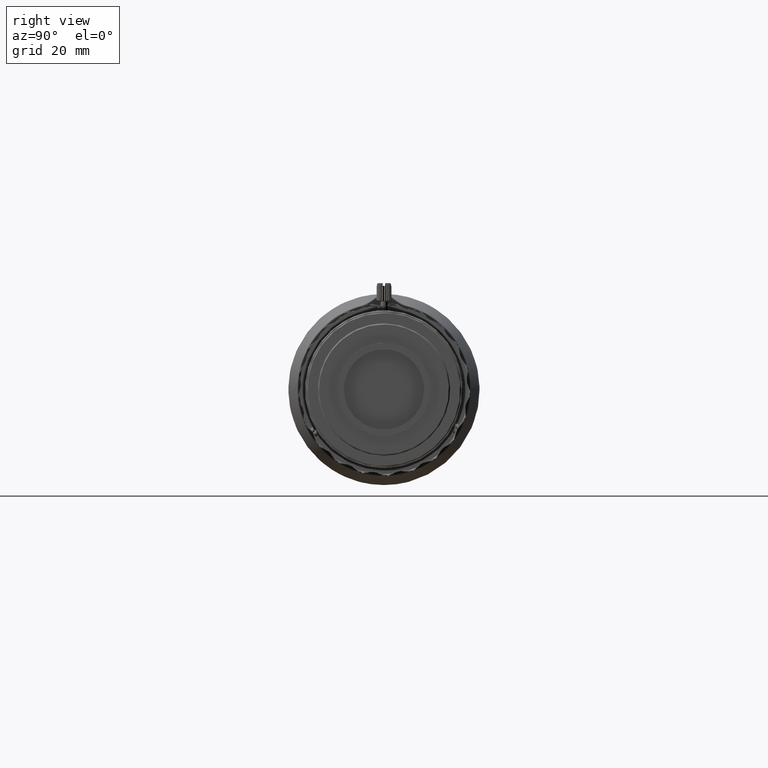
[diagram: clean part render]
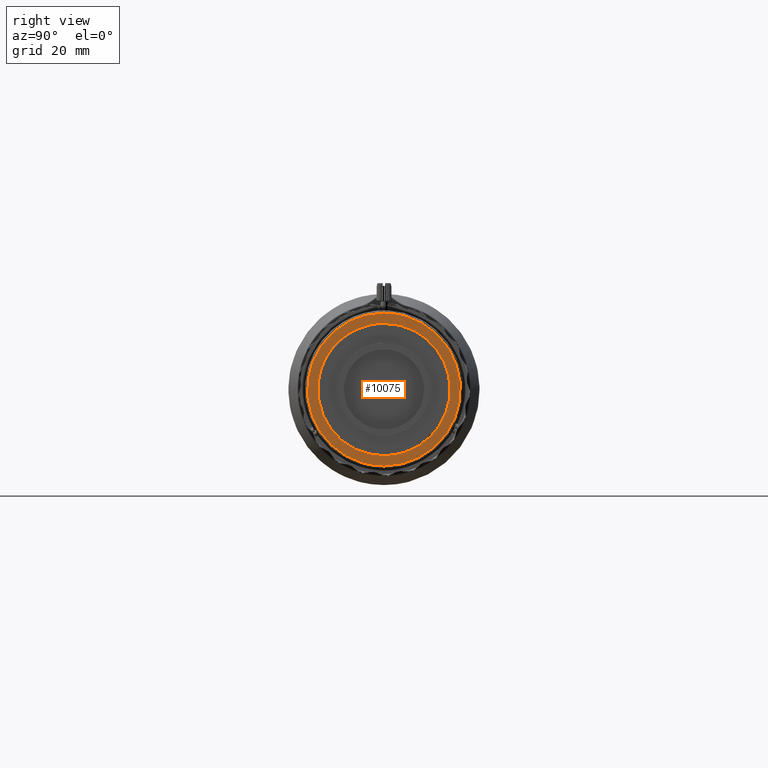
[diagram: same view with one face highlighted and labeled with its STEP entity id]
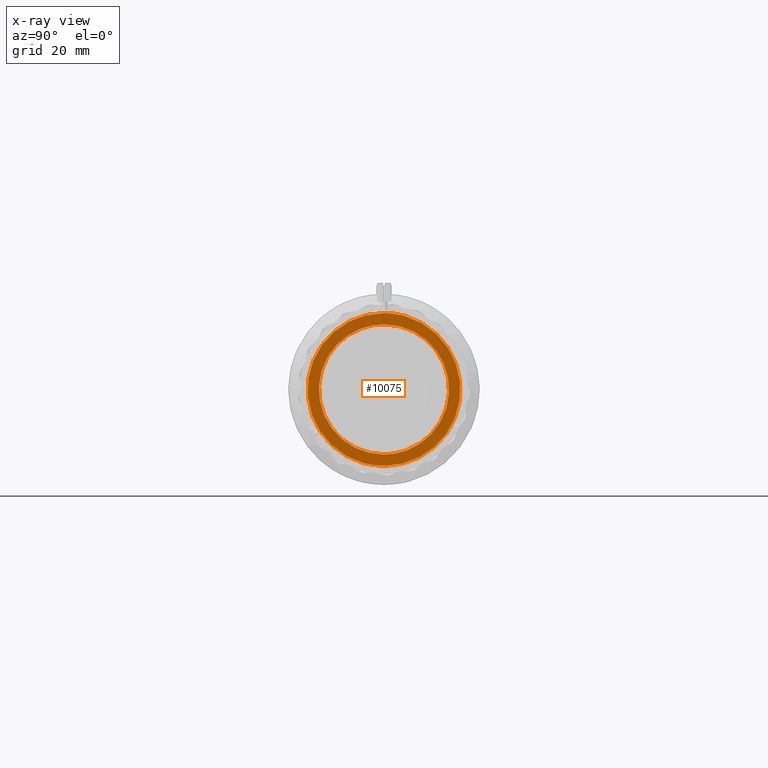
[diagram: x-ray of the same camera — body ghosted, the highlighted face saturated]
A machine part, right view. The second image highlights one B-rep face of the part: STEP entity #10075.
The next image is the same camera in x-ray: the body ghosted, the highlighted face saturated — about 0% of this face is hidden behind the body in this view.
In plain terms, the highlighted face is a freeform B-spline surface patch.
Its self-contained STEP definition (entity closure, byte-faithful):
#156 = CARTESIAN_POINT ( 'NONE',  ( 89.93381821399997023, 12.78101813842947898, 16.63461054782077397 ) ) ;
#602 = ORIENTED_EDGE ( 'NONE', *, *, #8631, .T. ) ;
#856 = CARTESIAN_POINT ( 'NONE',  ( 89.93381821399999865, -1.333333333333333899E-09, 20.79999050751760237 ) ) ;
#1176 = CARTESIAN_POINT ( 'NONE',  ( 89.93381821399999865, 4.631218081409530285, -17.24003436220694496 ) ) ;
#1408 = CARTESIAN_POINT ( 'NONE',  ( 89.93381821399999865, 14.15542450865320134, -10.87616304444943793 ) ) ;
#2891 = CARTESIAN_POINT ( 'NONE',  ( 89.93381821400001286, -15.46531095140053402, -8.915779467795569957 ) ) ;
#3131 = B_SPLINE_CURVE_WITH_KNOTS ( 'NONE', 3,
 ( #23734, #30474, #34166, #26761, #23288, #16565, #2891, #27211, #23964, #30919, #13330, #9393, #41316, #6132, #30247, #37418, #10078, #6365 ),
 .UNSPECIFIED., .F., .F.,
 ( 4, 2, 2, 2, 2, 2, 2, 2, 4 ),
 ( 0.0000000000000000000, 0.1250000000000000278, 0.2500000000000000555, 0.3750000000000001110, 0.5000000000000000000, 0.6250000000000000000, 0.7500000000000000000, 0.8750000000000001110, 1.000000000000000000 ),
 .UNSPECIFIED. ) ;
#3883 = CARTESIAN_POINT ( 'NONE',  ( 89.93381821399999865, -1.333333333333333899E-09, 20.79999050751760237 ) ) ;
#3924 = CARTESIAN_POINT ( 'NONE',  ( 89.93381821399999865, 21.04959039700000289, 21.04959039700000289 ) ) ;
#4089 = CARTESIAN_POINT ( 'NONE',  ( 89.93381821400001286, 2.724901360004573725, 20.79999050055277010 ) ) ;
#4266 = CARTESIAN_POINT ( 'NONE',  ( 89.93381821399998444, -16.63461054782077042, 12.78101813842947188 ) ) ;
#4493 = CARTESIAN_POINT ( 'NONE',  ( 89.93381821399999865, -20.79999050055277010, -2.724901360004572837 ) ) ;
#4645 = CARTESIAN_POINT ( 'NONE',  ( 89.93381821399999865, 2.318787963879583192, 17.70000532452005260 ) ) ;
#5236 = B_SPLINE_CURVE_WITH_KNOTS ( 'NONE', 3,
 ( #16842, #27944, #30972, #13382, #27494, #38154, #6421, #34682, #13600, #25162, #11507, #17995, #32810, #156, #32587, #42991, #4089, #856 ),
 .UNSPECIFIED., .F., .F.,
 ( 4, 2, 2, 2, 2, 2, 2, 2, 4 ),
 ( 0.0000000000000000000, 0.1250000000000000000, 0.2500000000000000555, 0.3750000000000000555, 0.5000000000000000000, 0.6250000000000000000, 0.7500000000000000000, 0.8750000000000000000, 1.000000000000000000 ),
 .UNSPECIFIED. ) ;
#5353 = CARTESIAN_POINT ( 'NONE',  ( 89.93381821400001286, -10.47729236332213354, -18.17391093324620854 ) ) ;
#6132 = CARTESIAN_POINT ( 'NONE',  ( 89.93381821399999865, -10.87616304444943260, 14.15542450865320490 ) ) ;
#6254 = CARTESIAN_POINT ( 'NONE',  ( 89.93381821399998444, -2.724901360004574169, -20.79999050055277010 ) ) ;
#6365 = CARTESIAN_POINT ( 'NONE',  ( 89.93381821399999865, -4.666666666666669577E-09, 17.70000532350669786 ) ) ;
#6421 = CARTESIAN_POINT ( 'NONE',  ( 89.93381821399999865, 18.17391093324620499, -10.47729236332212288 ) ) ;
#7743 = CARTESIAN_POINT ( 'NONE',  ( 89.93381821399999865, -1.333333333333333899E-09, 20.79999050751760237 ) ) ;
#7980 = CARTESIAN_POINT ( 'NONE',  ( 89.93381821399997023, -12.78101813842947010, 16.63461054782077397 ) ) ;
#8262 = CARTESIAN_POINT ( 'NONE',  ( 89.93381821399999865, -4.666666666666669577E-09, 17.70000532350669786 ) ) ;
#8354 = CARTESIAN_POINT ( 'NONE',  ( 89.93381821399999865, 8.915779580060041454, 15.46531083913604832 ) ) ;
#8576 = CARTESIAN_POINT ( 'NONE',  ( 89.93381821399999865, 10.87616304444943971, 14.15542450865320490 ) ) ;
#8631 = EDGE_CURVE ( 'NONE', #43362, #15150, #32618, .T. ) ;
#8835 = CARTESIAN_POINT ( 'NONE',  ( 89.93381821399999865, -20.25946011757501353, 5.442331153864668813 ) ) ;
#9207 = CARTESIAN_POINT ( 'NONE',  ( 89.93381821399999865, -1.000000000000000062E-09, -17.70000532350669786 ) ) ;
#9393 = CARTESIAN_POINT ( 'NONE',  ( 89.93381821399998444, -15.46531083913604832, 8.915779580060045006 ) ) ;
#10075 = ADVANCED_FACE ( 'NONE', ( #11570, #18056 ), #35959, .T. ) ;
#10078 = CARTESIAN_POINT ( 'NONE',  ( 89.93381821399999865, -2.318787963879580083, 17.70000532452005970 ) ) ;
#10292 = EDGE_CURVE ( 'NONE', #15150, #43362, #3131, .T. ) ;
#11168 = ORIENTED_EDGE ( 'NONE', *, *, #43765, .T. ) ;
#11507 = CARTESIAN_POINT ( 'NONE',  ( 89.93381821400001286, 20.25946011757501353, 5.442331153864675919 ) ) ;
#11570 = FACE_BOUND ( 'NONE', #19519, .T. ) ;
#12060 = CARTESIAN_POINT ( 'NONE',  ( 89.93381821399998444, 2.318787963879582303, -17.70000532452005970 ) ) ;
#13330 = CARTESIAN_POINT ( 'NONE',  ( 89.93381821399999865, -17.24003447447142179, 4.631217969145050795 ) ) ;
#13382 = CARTESIAN_POINT ( 'NONE',  ( 89.93381821400002707, 10.47729236332213709, -18.17391093324621210 ) ) ;
#13600 = CARTESIAN_POINT ( 'NONE',  ( 89.93381821399999865, 20.79999050055277365, -2.724901360004571504 ) ) ;
#14584 = CARTESIAN_POINT ( 'NONE',  ( 89.93381821399999865, -21.04959039700000289, -21.04959039700000289 ) ) ;
#15075 = CARTESIAN_POINT ( 'NONE',  ( 89.93381821399999865, -4.666666666666669577E-09, 17.70000532350669786 ) ) ;
#15150 = VERTEX_POINT ( 'NONE', #9207 ) ;
#15298 = CARTESIAN_POINT ( 'NONE',  ( 89.93381821399999865, -1.000000000000000062E-09, -17.70000532350669786 ) ) ;
#16565 = CARTESIAN_POINT ( 'NONE',  ( 89.93381821400004128, -14.15542450865321378, -10.87616304444944149 ) ) ;
#16842 = CARTESIAN_POINT ( 'NONE',  ( 89.93381821399999865, -5.999999999999999960E-09, -20.79999050751760237 ) ) ;
#17857 = CARTESIAN_POINT ( 'NONE',  ( 89.93381821399999865, -5.999999999999999960E-09, -20.79999050751760237 ) ) ;
#17995 = CARTESIAN_POINT ( 'NONE',  ( 89.93381821399998444, 18.17391093324620854, 10.47729236332212466 ) ) ;
#18056 = FACE_OUTER_BOUND ( 'NONE', #40560, .T. ) ;
#18321 = CARTESIAN_POINT ( 'NONE',  ( 89.93381821399999865, 10.87616304444943971, -14.15542450865320134 ) ) ;
#18629 = CARTESIAN_POINT ( 'NONE',  ( 89.93381821399999865, -20.25946011757501708, -5.442331153864659932 ) ) ;
#18776 = CARTESIAN_POINT ( 'NONE',  ( 89.93381821399999865, 15.46531083913604832, -8.915779580060046783 ) ) ;
#19490 = CARTESIAN_POINT ( 'NONE',  ( 89.93381821399999865, -5.442331153864668813, -20.25946011757500997 ) ) ;
#19519 = EDGE_LOOP ( 'NONE', ( #44418, #602 ) ) ;
#20359 = B_SPLINE_CURVE_WITH_KNOTS ( 'NONE', 3,
 ( #7743, #21886, #40545, #36002, #7980, #4266, #32531, #8835, #43167, #4493, #18629, #29918, #32758, #22968, #5353, #19490, #6254, #37992 ),
 .UNSPECIFIED., .F., .F.,
 ( 4, 2, 2, 2, 2, 2, 2, 2, 4 ),
 ( 0.0000000000000000000, 0.1250000000000000000, 0.2500000000000000000, 0.3750000000000000000, 0.5000000000000000000, 0.6250000000000000000, 0.7500000000000000000, 0.8750000000000000000, 1.000000000000000000 ),
 .UNSPECIFIED. ) ;
#20879 = ORIENTED_EDGE ( 'NONE', *, *, #24971, .T. ) ;
#21886 = CARTESIAN_POINT ( 'NONE',  ( 89.93381821399998444, -2.724901360004573725, 20.79999050055277010 ) ) ;
#22968 = CARTESIAN_POINT ( 'NONE',  ( 89.93381821399998444, -12.78101813842947188, -16.63461054782077042 ) ) ;
#23205 = VERTEX_POINT ( 'NONE', #3883 ) ;
#23288 = CARTESIAN_POINT ( 'NONE',  ( 89.93381821399999865, -10.87616304444943616, -14.15542450865320134 ) ) ;
#23734 = CARTESIAN_POINT ( 'NONE',  ( 89.93381821399999865, -1.000000000000000062E-09, -17.70000532350669786 ) ) ;
#23964 = CARTESIAN_POINT ( 'NONE',  ( 89.93381821399999865, -17.70000532452005615, -2.318787963879583636 ) ) ;
#24971 = EDGE_CURVE ( 'NONE', #41977, #23205, #5236, .T. ) ;
#25162 = CARTESIAN_POINT ( 'NONE',  ( 89.93381821399999865, 20.79999050055277010, 2.724901360004574169 ) ) ;
#25263 = CARTESIAN_POINT ( 'NONE',  ( 89.93381821399999865, 17.70000532452005970, -2.318787963879581859 ) ) ;
#25690 = CARTESIAN_POINT ( 'NONE',  ( 89.93381821399999865, -21.04959039700000289, 21.04959039700000289 ) ) ;
#25720 = CARTESIAN_POINT ( 'NONE',  ( 89.93381821400001286, 4.631217969145051683, 17.24003447447141824 ) ) ;
#26761 = CARTESIAN_POINT ( 'NONE',  ( 89.93381821400002707, -8.915779580060046783, -15.46531083913604654 ) ) ;
#27211 = CARTESIAN_POINT ( 'NONE',  ( 89.93381821400004128, -17.24003436220693786, -4.631218081409528509 ) ) ;
#27494 = CARTESIAN_POINT ( 'NONE',  ( 89.93381821399999865, 12.78101813842946477, -16.63461054782076332 ) ) ;
#27944 = CARTESIAN_POINT ( 'NONE',  ( 89.93381821399999865, 2.724901360004573725, -20.79999050055277010 ) ) ;
#29658 = CARTESIAN_POINT ( 'NONE',  ( 89.93381821399999865, 14.15542450865320134, 10.87616304444943793 ) ) ;
#29918 = CARTESIAN_POINT ( 'NONE',  ( 89.93381821399999865, -18.17391093324620499, -10.47729236332213354 ) ) ;
#30247 = CARTESIAN_POINT ( 'NONE',  ( 89.93381821399999865, -8.915779467795569957, 15.46531095140053225 ) ) ;
#30474 = CARTESIAN_POINT ( 'NONE',  ( 89.93381821400001286, -2.318787963879582303, -17.70000532452005615 ) ) ;
#30919 = CARTESIAN_POINT ( 'NONE',  ( 89.93381821399999865, -17.70000532452005970, 2.318787963879581859 ) ) ;
#30972 = CARTESIAN_POINT ( 'NONE',  ( 89.93381821399999865, 5.442331153864661708, -20.25946011757500642 ) ) ;
#32450 = CARTESIAN_POINT ( 'NONE',  ( 89.93381821399999865, 17.24003436220694496, 4.631218081409529397 ) ) ;
#32531 = CARTESIAN_POINT ( 'NONE',  ( 89.93381821400002707, -18.17391093324620854, 10.47729236332213354 ) ) ;
#32587 = CARTESIAN_POINT ( 'NONE',  ( 89.93381821399999865, 10.47729236332212288, 18.17391093324620499 ) ) ;
#32618 = B_SPLINE_CURVE_WITH_KNOTS ( 'NONE', 3,
 ( #15075, #4645, #25720, #8354, #8576, #29658, #43543, #32450, #36154, #25263, #32908, #18776, #1408, #18321, #43772, #1176, #12060, #15298 ),
 .UNSPECIFIED., .F., .F.,
 ( 4, 2, 2, 2, 2, 2, 2, 2, 4 ),
 ( 0.0000000000000000000, 0.1250000000000000000, 0.2500000000000000000, 0.3750000000000000000, 0.5000000000000000000, 0.6250000000000000000, 0.7500000000000000000, 0.8750000000000000000, 1.000000000000000000 ),
 .UNSPECIFIED. ) ;
#32758 = CARTESIAN_POINT ( 'NONE',  ( 89.93381821399998444, -16.63461054782077042, -12.78101813842946655 ) ) ;
#32810 = CARTESIAN_POINT ( 'NONE',  ( 89.93381821399997023, 16.63461054782075621, 12.78101813842947010 ) ) ;
#32908 = CARTESIAN_POINT ( 'NONE',  ( 89.93381821399999865, 17.24003447447142179, -4.631217969145050795 ) ) ;
#34166 = CARTESIAN_POINT ( 'NONE',  ( 89.93381821399998444, -4.631217969145050795, -17.24003447447142179 ) ) ;
#34682 = CARTESIAN_POINT ( 'NONE',  ( 89.93381821399999865, 20.25946011757500287, -5.442331153864672366 ) ) ;
#35959 = B_SPLINE_SURFACE_WITH_KNOTS ( 'NONE', 1, 1, ( 
 ( #25690, #3924 ),
 ( #14584, #39362 ) ),
 .UNSPECIFIED., .F., .F., .F.,
 ( 2, 2 ),
 ( 2, 2 ),
 ( 0.0000000000000000000, 1.000000000000000000 ),
 ( 0.0000000000000000000, 1.000000000000000000 ),
 .UNSPECIFIED. ) ;
#36002 = CARTESIAN_POINT ( 'NONE',  ( 89.93381821399999865, -10.47729236332212288, 18.17391093324620144 ) ) ;
#36154 = CARTESIAN_POINT ( 'NONE',  ( 89.93381821399999865, 17.70000532452005970, 2.318787963879582747 ) ) ;
#37418 = CARTESIAN_POINT ( 'NONE',  ( 89.93381821399999865, -4.631218081409532061, 17.24003436220693430 ) ) ;
#37992 = CARTESIAN_POINT ( 'NONE',  ( 89.93381821399999865, -5.999999999999999960E-09, -20.79999050751760237 ) ) ;
#38154 = CARTESIAN_POINT ( 'NONE',  ( 89.93381821400002707, 16.63461054782077042, -12.78101813842947543 ) ) ;
#39362 = CARTESIAN_POINT ( 'NONE',  ( 89.93381821399999865, 21.04959039700000289, -21.04959039700000289 ) ) ;
#40545 = CARTESIAN_POINT ( 'NONE',  ( 89.93381821399998444, -5.442331153864678583, 20.25946011757501353 ) ) ;
#40560 = EDGE_LOOP ( 'NONE', ( #20879, #11168 ) ) ;
#41316 = CARTESIAN_POINT ( 'NONE',  ( 89.93381821399999865, -14.15542450865320667, 10.87616304444943438 ) ) ;
#41977 = VERTEX_POINT ( 'NONE', #17857 ) ;
#42991 = CARTESIAN_POINT ( 'NONE',  ( 89.93381821399998444, 5.442331153864672366, 20.25946011757500997 ) ) ;
#43167 = CARTESIAN_POINT ( 'NONE',  ( 89.93381821400001286, -20.79999050055276655, 2.724901360004574169 ) ) ;
#43362 = VERTEX_POINT ( 'NONE', #8262 ) ;
#43543 = CARTESIAN_POINT ( 'NONE',  ( 89.93381821399999865, 15.46531095140052692, 8.915779467795568181 ) ) ;
#43765 = EDGE_CURVE ( 'NONE', #23205, #41977, #20359, .T. ) ;
#43772 = CARTESIAN_POINT ( 'NONE',  ( 89.93381821399999865, 8.915779467795566404, -15.46531095140052869 ) ) ;
#44418 = ORIENTED_EDGE ( 'NONE', *, *, #10292, .T. ) ;